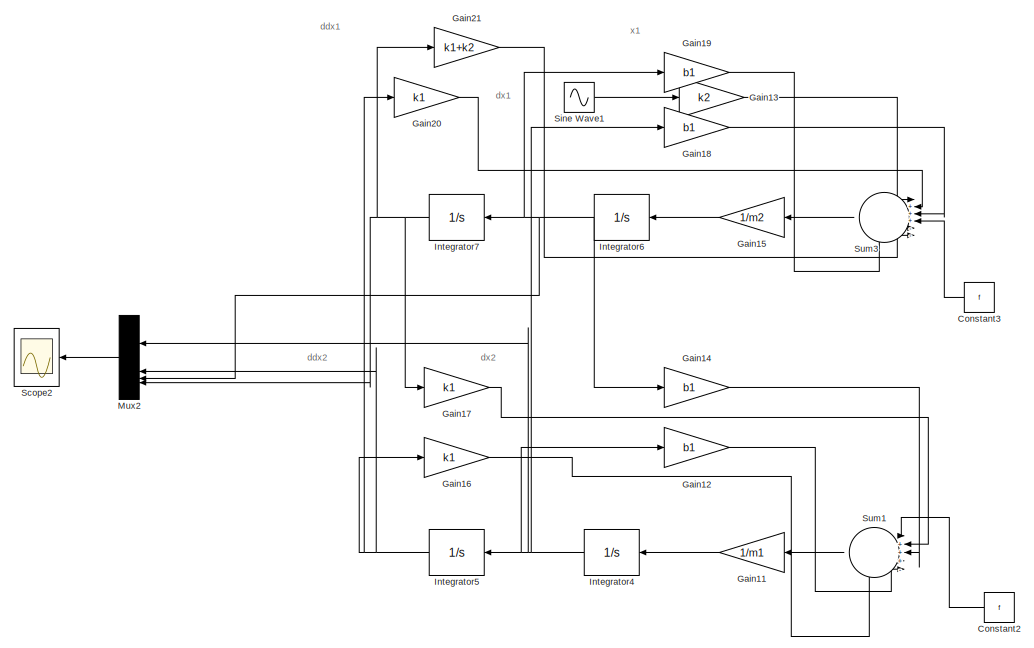
[diagram: root canvas - part 1/2, right side, full height]
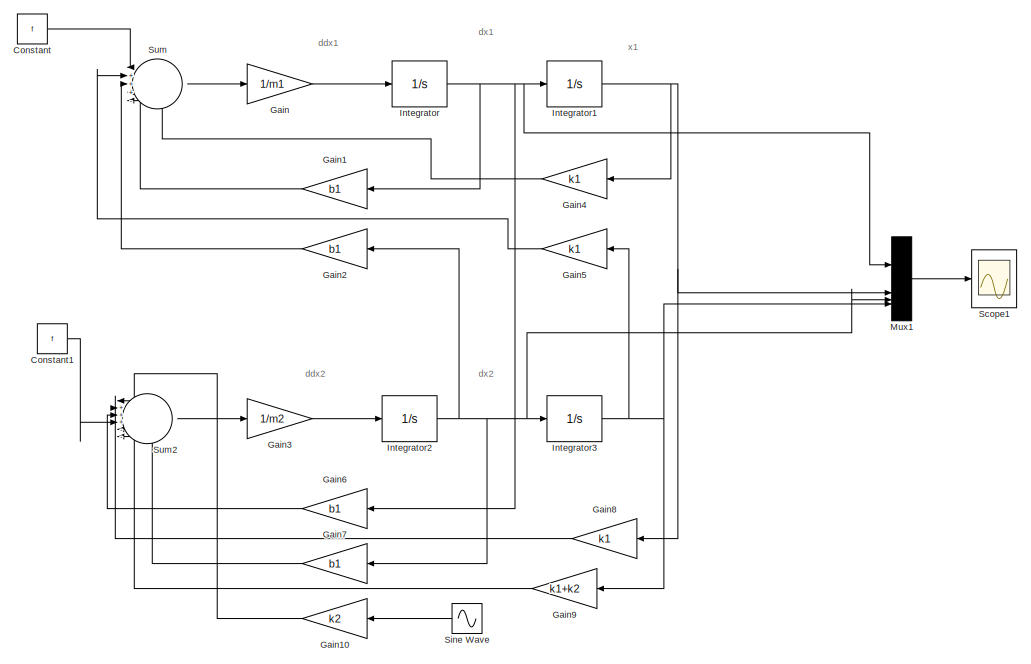
[diagram: root canvas - part 2/2, left side, full height]
MODEL slx_30b8edc56cc3
KIND model
CONFIG AbsTol = auto
CONFIG EnableMultiTasking = off
CONFIG FixedStep = auto
CONFIG InitFcn = m1 = 290;     % kg\nm2 = 59;      % kg\nb1 = 1000;    % Ns/m\nk1 = 16182;   % N/m\nk2 = 19000;   % N/m\nf = 0;        % N\n\n\n
CONFIG MaxStep = auto
CONFIG MinStep = auto
CONFIG RelTol = 1e-3
CONFIG SampleTimeConstraint = Unconstrained
CONFIG SolverName = VariableStepAuto
CONFIG StartTime = 0.0
CONFIG StopTime = 10.0
BLOCK [Constant] Constant
  Value = f
BLOCK [Constant] Constant1
  Value = f
BLOCK [Constant] Constant2
  NameLocation = top
  Value = f
BLOCK [Constant] Constant3
  NameLocation = top
  Value = f
BLOCK [Gain] Gain
  Gain = 1/m1
BLOCK [Gain] Gain1
  Gain = b1
  NameLocation = top
BLOCK [Gain] Gain10
  Gain = k2
  NameLocation = top
BLOCK [Gain] Gain11
  Gain = 1/m1
  NameLocation = top
BLOCK [Gain] Gain12
  Gain = b1
BLOCK [Gain] Gain13
  Gain = k2
BLOCK [Gain] Gain14
  Gain = b1
BLOCK [Gain] Gain15
  Gain = 1/m2
  NameLocation = top
BLOCK [Gain] Gain16
  Gain = k1
BLOCK [Gain] Gain17
  Gain = k1
BLOCK [Gain] Gain18
  Gain = b1
BLOCK [Gain] Gain19
  Gain = b1
BLOCK [Gain] Gain2
  Gain = b1
  NameLocation = top
BLOCK [Gain] Gain20
  Gain = k1
BLOCK [Gain] Gain21
  Gain = k1+k2
BLOCK [Gain] Gain3
  Gain = 1/m2
BLOCK [Gain] Gain4
  Gain = k1
  NameLocation = top
BLOCK [Gain] Gain5
  Gain = k1
  NameLocation = top
BLOCK [Gain] Gain6
  Gain = b1
  NameLocation = top
BLOCK [Gain] Gain7
  Gain = b1
  NameLocation = top
BLOCK [Gain] Gain8
  Gain = k1
  NameLocation = top
BLOCK [Gain] Gain9
  Gain = k1+k2
  NameLocation = top
BLOCK [Integrator] Integrator
BLOCK [Integrator] Integrator1
BLOCK [Integrator] Integrator2
BLOCK [Integrator] Integrator3
BLOCK [Integrator] Integrator4
  NameLocation = top
BLOCK [Integrator] Integrator5
  NameLocation = top
BLOCK [Integrator] Integrator6
  NameLocation = top
BLOCK [Integrator] Integrator7
  NameLocation = top
BLOCK [Mux] Mux1
  DisplayOption = bar
BLOCK [Mux] Mux2
  DisplayOption = bar
  NameLocation = top
BLOCK [Scope] Scope1
  Floating = off
  NumInputPorts = 1
  ScopeSpecificationString = Simulink.scopes.TimeScopeBlockCfg('CurrentConfiguration', extmgr.ConfigurationSet(extmgr.Configuration('Core','General UI',true),extmgr.Configuration('Core','Source UI',true),extmgr.Configuration('Sources','WiredSimulink',true,'DataLoggingVariableName','ScopeData1'),extmgr.Configuration('Visuals','Time Domain',true,'SerializedDisplays',{struct('MinYLimReal','-0.1435','MaxYLimReal','0.16133','YLabe...<+1552ch>
BLOCK [Scope] Scope2
  Floating = off
  NameLocation = top
  NumInputPorts = 1
  ScopeSpecificationString = Simulink.scopes.TimeScopeBlockCfg('CurrentConfiguration', extmgr.ConfigurationSet(extmgr.Configuration('Core','General UI',true),extmgr.Configuration('Core','Source UI',true),extmgr.Configuration('Sources','WiredSimulink',true),extmgr.Configuration('Visuals','Time Domain',true,'SerializedDisplays',{struct('MinYLimReal','-0.44079','MaxYLimReal','0.36903','YLabelReal','','MinYLimMag','0.00000','MaxY...<+1516ch>
BLOCK [Sin] Sine Wave
  Amplitude = 0.05
  Frequency = 0.5*pi
  NameLocation = top
  SampleTime = 0
BLOCK [Sin] Sine Wave1
  Amplitude = 0.05
  Frequency = 20*pi
  SampleTime = 0
BLOCK [Sum] Sum
  Inputs = |+++--
BLOCK [Sum] Sum1
  Inputs = |+++--
  NameLocation = top
BLOCK [Sum] Sum2
  Inputs = |+++---
BLOCK [Sum] Sum3
  Inputs = |+++---
  NameLocation = top
ANNOTATION (root): ddx1
ANNOTATION (root): ddx2
ANNOTATION (root): dx1
ANNOTATION (root): dx2
ANNOTATION (root): x1
LINE Constant1:1 -> Sum2:4
LINE Constant2:1 -> Sum1:1
LINE Constant3:1 -> Sum3:4
LINE Constant:1 -> Sum:1
LINE Gain10:1 -> Sum2:1
LINE Gain11:1 -> Integrator4:1
LINE Gain12:1 -> Sum1:4
LINE Gain13:1 -> Sum3:1
LINE Gain14:1 -> Sum1:3
LINE Gain15:1 -> Integrator6:1
LINE Gain16:1 -> Sum1:5
LINE Gain17:1 -> Sum1:2
LINE Gain18:1 -> Sum3:3
LINE Gain19:1 -> Sum3:6
LINE Gain1:1 -> Sum:4
LINE Gain20:1 -> Sum3:2
LINE Gain21:1 -> Sum3:5
LINE Gain2:1 -> Sum:3
LINE Gain3:1 -> Integrator2:1
LINE Gain4:1 -> Sum:5
LINE Gain5:1 -> Sum:2
LINE Gain6:1 -> Sum2:3
LINE Gain7:1 -> Sum2:6
LINE Gain8:1 -> Sum2:2
LINE Gain9:1 -> Sum2:5
LINE Gain:1 -> Integrator:1
NET Integrator1:1 -> Gain4:1, Gain8:1, Mux1:2
NET Integrator2:1 -> Gain2:1, Gain7:1, Integrator3:1, Mux1:3
NET Integrator3:1 -> Gain5:1, Gain9:1, Mux1:4
NET Integrator4:1 -> Gain12:1, Gain18:1, Integrator5:1, Mux2:1
NET Integrator5:1 -> Gain16:1, Gain20:1, Mux2:2
NET Integrator6:1 -> Gain14:1, Gain19:1, Integrator7:1, Mux2:3
NET Integrator7:1 -> Gain17:1, Gain21:1, Mux2:4
NET Integrator:1 -> Gain1:1, Gain6:1, Integrator1:1, Mux1:1
LINE Mux1:1 -> Scope1:1
LINE Mux2:1 -> Scope2:1
LINE Sine Wave1:1 -> Gain13:1
LINE Sine Wave:1 -> Gain10:1
LINE Sum1:1 -> Gain11:1
LINE Sum2:1 -> Gain3:1
LINE Sum3:1 -> Gain15:1
LINE Sum:1 -> Gain:1
note: NET lines group one-source signal fan-out (src -> all destinations, sorted); 1:1 wires keep LINE
